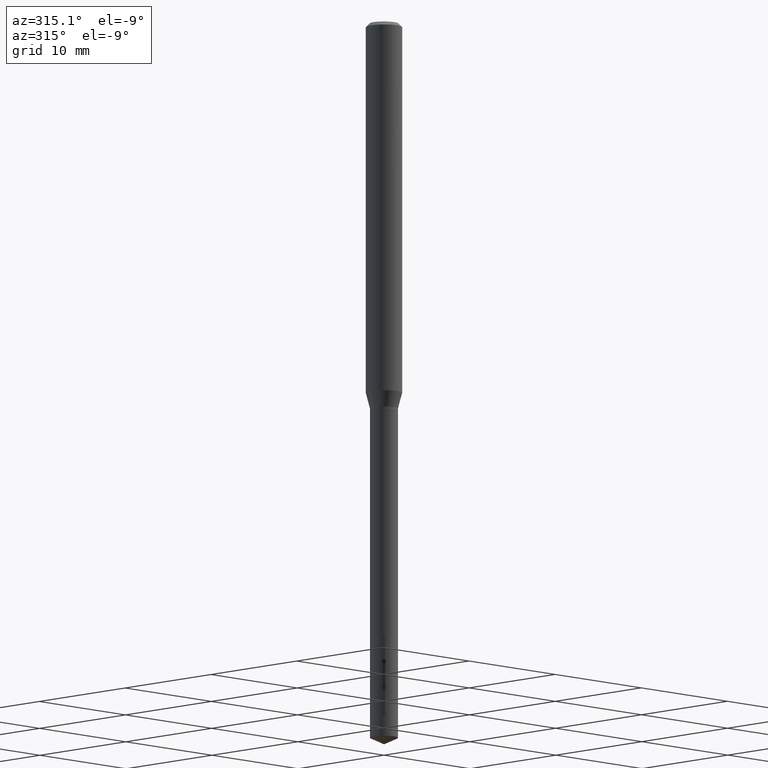
[diagram: clean part render]
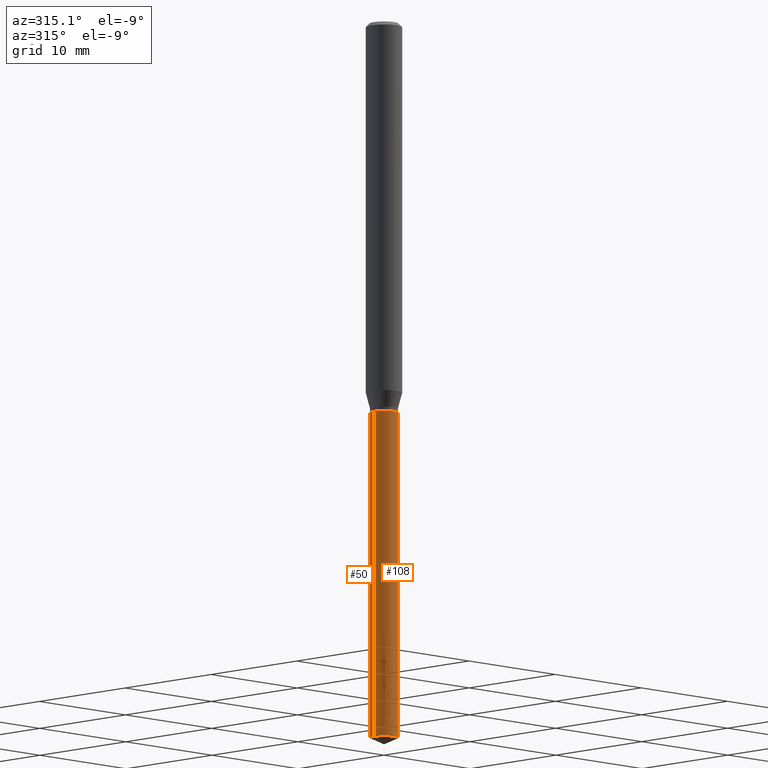
[diagram: same view with one multi-face feature highlighted, each face labeled with its STEP entity id]
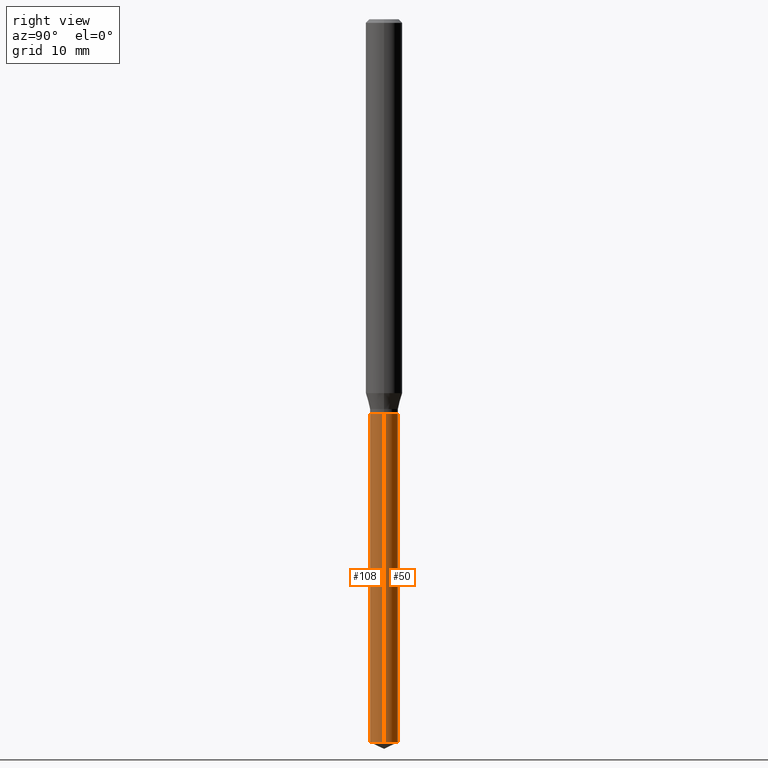
[diagram: same view with one multi-face feature highlighted, each face labeled with its STEP entity id]
A machine part, auxiliary view. The highlighted faces form ONE feature: a constant-radius fillet chain: 2 tangent blend faces with common blend radius 1.1506 mm. The faces share edges in the B-rep.
A second angle (right view) of the same feature is appended — it is thin or edge-on in the first view.
Their STEP definitions:
[1] entity #50 (Cylinder):
#20 = CARTESIAN_POINT ( 'NONE',  ( -0.04530000000000000693, -7.851249929804849954E-15, -2.340876263085578390 ) ) ;
#21 = VERTEX_POINT ( 'NONE', #106 ) ;
#24 = VERTEX_POINT ( 'NONE', #110 ) ;
#29 = DIRECTION ( 'NONE',  ( -2.445468806185136597E-29, 3.491481338843145583E-15, 1.000000000000000000 ) ) ;
#39 = AXIS2_PLACEMENT_3D ( 'NONE', #128, #393, #276 ) ;
#48 = AXIS2_PLACEMENT_3D ( 'NONE', #488, #184, #259 ) ;
#50 = ADVANCED_FACE ( 'NONE', ( #114 ), #295, .T. ) ;
#87 = ORIENTED_EDGE ( 'NONE', *, *, #428, .F. ) ;
#106 = CARTESIAN_POINT ( 'NONE',  ( -0.04529999999999999999, -5.991204685033035870E-15, -1.275400000000000311 ) ) ;
#110 = CARTESIAN_POINT ( 'NONE',  ( 0.04530000000000000693, -8.489453998403362090E-15, -2.340876263085578390 ) ) ;
#114 = FACE_OUTER_BOUND ( 'NONE', #250, .T. ) ;
#116 = DIRECTION ( 'NONE',  ( -2.445468806185136877E-29, 3.491481338843145188E-15, 1.000000000000000000 ) ) ;
#120 = LINE ( 'NONE', #454, #363 ) ;
#128 = CARTESIAN_POINT ( 'NONE',  ( 3.118950915408523626E-29, -4.453035299560548797E-15, -1.275400000000000311 ) ) ;
#146 = DIRECTION ( 'NONE',  ( 1.000000000000000000, -6.982962677686271444E-15, 0.000000000000000000 ) ) ;
#147 = EDGE_CURVE ( 'NONE', #24, #427, #152, .T. ) ;
#152 = CIRCLE ( 'NONE', #379, 0.04529999999999999999 ) ;
#171 = ORIENTED_EDGE ( 'NONE', *, *, #414, .T. ) ;
#184 = DIRECTION ( 'NONE',  ( -2.445468806185136597E-29, 3.491481338843145583E-15, 1.000000000000000000 ) ) ;
#202 = CARTESIAN_POINT ( 'NONE',  ( 0.04529999999999999999, -4.769363508859737076E-15, -1.275400000000000311 ) ) ;
#213 = ORIENTED_EDGE ( 'NONE', *, *, #229, .F. ) ;
#229 = EDGE_CURVE ( 'NONE', #24, #354, #120, .T. ) ;
#250 = EDGE_LOOP ( 'NONE', ( #283, #171, #87, #213 ) ) ;
#259 = DIRECTION ( 'NONE',  ( 1.000000000000000000, -6.982962677686271444E-15, 0.000000000000000000 ) ) ;
#276 = DIRECTION ( 'NONE',  ( 1.000000000000000000, -6.982962677686271444E-15, 0.000000000000000000 ) ) ;
#283 = ORIENTED_EDGE ( 'NONE', *, *, #147, .T. ) ;
#284 = DIRECTION ( 'NONE',  ( -2.445468806185136877E-29, 3.491481338843145188E-15, 1.000000000000000000 ) ) ;
#295 = CYLINDRICAL_SURFACE ( 'NONE', #48, 0.04529999999999999999 ) ;
#343 = CIRCLE ( 'NONE', #39, 0.04529999999999999999 ) ;
#354 = VERTEX_POINT ( 'NONE', #202 ) ;
#363 = VECTOR ( 'NONE', #116, 39.37007874015748143 ) ;
#364 = LINE ( 'NONE', #389, #391 ) ;
#369 = CARTESIAN_POINT ( 'NONE',  ( 5.724539880515013302E-29, -8.173125789104174599E-15, -2.340876263085578390 ) ) ;
#379 = AXIS2_PLACEMENT_3D ( 'NONE', #369, #29, #146 ) ;
#389 = CARTESIAN_POINT ( 'NONE',  ( -0.04529999999999999999, -4.131159440261224152E-15, -1.275400000000000311 ) ) ;
#391 = VECTOR ( 'NONE', #284, 39.37007874015748143 ) ;
#393 = DIRECTION ( 'NONE',  ( -2.445468806185136597E-29, 3.491481338843145583E-15, 1.000000000000000000 ) ) ;
#414 = EDGE_CURVE ( 'NONE', #427, #21, #364, .T. ) ;
#427 = VERTEX_POINT ( 'NONE', #20 ) ;
#428 = EDGE_CURVE ( 'NONE', #354, #21, #343, .T. ) ;
#454 = CARTESIAN_POINT ( 'NONE',  ( 0.04529999999999999999, -4.769363508859737076E-15, -1.275400000000000311 ) ) ;
#488 = CARTESIAN_POINT ( 'NONE',  ( 3.118950915408523626E-29, -4.453035299560548797E-15, -1.275400000000000311 ) ) ;
[2] entity #108 (Cylinder):
#15 = CIRCLE ( 'NONE', #418, 0.04529999999999999999 ) ;
#20 = CARTESIAN_POINT ( 'NONE',  ( -0.04530000000000000693, -7.851249929804849954E-15, -2.340876263085578390 ) ) ;
#21 = VERTEX_POINT ( 'NONE', #106 ) ;
#24 = VERTEX_POINT ( 'NONE', #110 ) ;
#34 = ORIENTED_EDGE ( 'NONE', *, *, #229, .T. ) ;
#104 = AXIS2_PLACEMENT_3D ( 'NONE', #257, #377, #411 ) ;
#106 = CARTESIAN_POINT ( 'NONE',  ( -0.04529999999999999999, -5.991204685033035870E-15, -1.275400000000000311 ) ) ;
#108 = ADVANCED_FACE ( 'NONE', ( #149 ), #179, .T. ) ;
#110 = CARTESIAN_POINT ( 'NONE',  ( 0.04530000000000000693, -8.489453998403362090E-15, -2.340876263085578390 ) ) ;
#116 = DIRECTION ( 'NONE',  ( -2.445468806185136877E-29, 3.491481338843145188E-15, 1.000000000000000000 ) ) ;
#120 = LINE ( 'NONE', #454, #363 ) ;
#137 = ORIENTED_EDGE ( 'NONE', *, *, #357, .F. ) ;
#138 = DIRECTION ( 'NONE',  ( -2.445468806185136597E-29, 3.491481338843145583E-15, 1.000000000000000000 ) ) ;
#139 = EDGE_CURVE ( 'NONE', #427, #24, #15, .T. ) ;
#149 = FACE_OUTER_BOUND ( 'NONE', #325, .T. ) ;
#151 = DIRECTION ( 'NONE',  ( -2.445468806185136597E-29, 3.491481338843145583E-15, 1.000000000000000000 ) ) ;
#179 = CYLINDRICAL_SURFACE ( 'NONE', #104, 0.04529999999999999999 ) ;
#202 = CARTESIAN_POINT ( 'NONE',  ( 0.04529999999999999999, -4.769363508859737076E-15, -1.275400000000000311 ) ) ;
#203 = ORIENTED_EDGE ( 'NONE', *, *, #414, .F. ) ;
#229 = EDGE_CURVE ( 'NONE', #24, #354, #120, .T. ) ;
#248 = ORIENTED_EDGE ( 'NONE', *, *, #139, .T. ) ;
#257 = CARTESIAN_POINT ( 'NONE',  ( 3.118950915408523626E-29, -4.453035299560548797E-15, -1.275400000000000311 ) ) ;
#263 = AXIS2_PLACEMENT_3D ( 'NONE', #388, #138, #436 ) ;
#284 = DIRECTION ( 'NONE',  ( -2.445468806185136877E-29, 3.491481338843145188E-15, 1.000000000000000000 ) ) ;
#325 = EDGE_LOOP ( 'NONE', ( #203, #248, #34, #137 ) ) ;
#354 = VERTEX_POINT ( 'NONE', #202 ) ;
#357 = EDGE_CURVE ( 'NONE', #21, #354, #465, .T. ) ;
#363 = VECTOR ( 'NONE', #116, 39.37007874015748143 ) ;
#364 = LINE ( 'NONE', #389, #391 ) ;
#377 = DIRECTION ( 'NONE',  ( -2.445468806185136597E-29, 3.491481338843145583E-15, 1.000000000000000000 ) ) ;
#388 = CARTESIAN_POINT ( 'NONE',  ( 3.118950915408523626E-29, -4.453035299560548797E-15, -1.275400000000000311 ) ) ;
#389 = CARTESIAN_POINT ( 'NONE',  ( -0.04529999999999999999, -4.131159440261224152E-15, -1.275400000000000311 ) ) ;
#391 = VECTOR ( 'NONE', #284, 39.37007874015748143 ) ;
#411 = DIRECTION ( 'NONE',  ( 1.000000000000000000, -6.982962677686271444E-15, 0.000000000000000000 ) ) ;
#414 = EDGE_CURVE ( 'NONE', #427, #21, #364, .T. ) ;
#418 = AXIS2_PLACEMENT_3D ( 'NONE', #490, #151, #444 ) ;
#427 = VERTEX_POINT ( 'NONE', #20 ) ;
#436 = DIRECTION ( 'NONE',  ( 1.000000000000000000, -6.982962677686271444E-15, 0.000000000000000000 ) ) ;
#444 = DIRECTION ( 'NONE',  ( 1.000000000000000000, -6.982962677686271444E-15, 0.000000000000000000 ) ) ;
#454 = CARTESIAN_POINT ( 'NONE',  ( 0.04529999999999999999, -4.769363508859737076E-15, -1.275400000000000311 ) ) ;
#465 = CIRCLE ( 'NONE', #263, 0.04529999999999999999 ) ;
#490 = CARTESIAN_POINT ( 'NONE',  ( 5.724539880515013302E-29, -8.173125789104174599E-15, -2.340876263085578390 ) ) ;